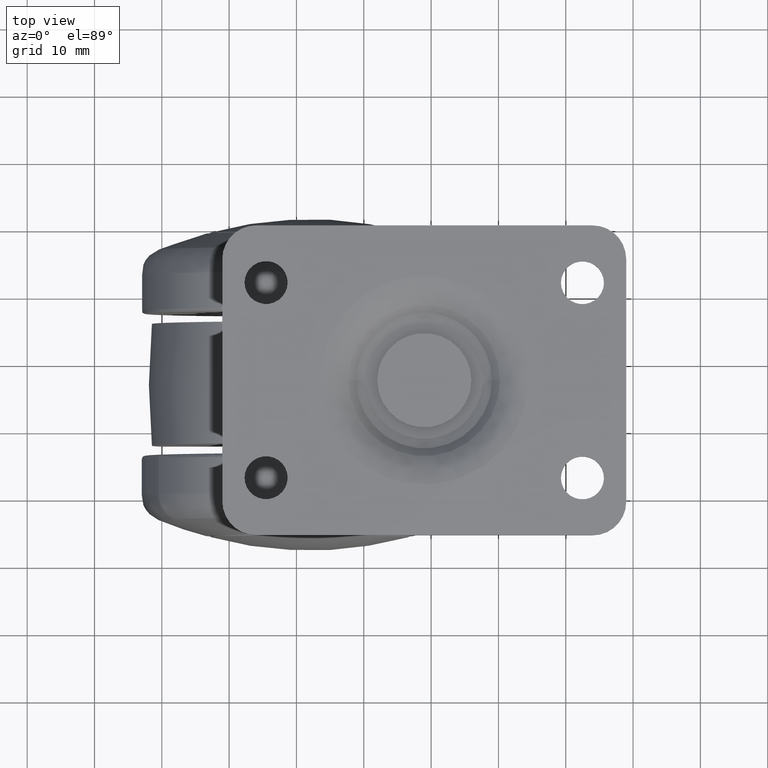
[diagram: clean part render]
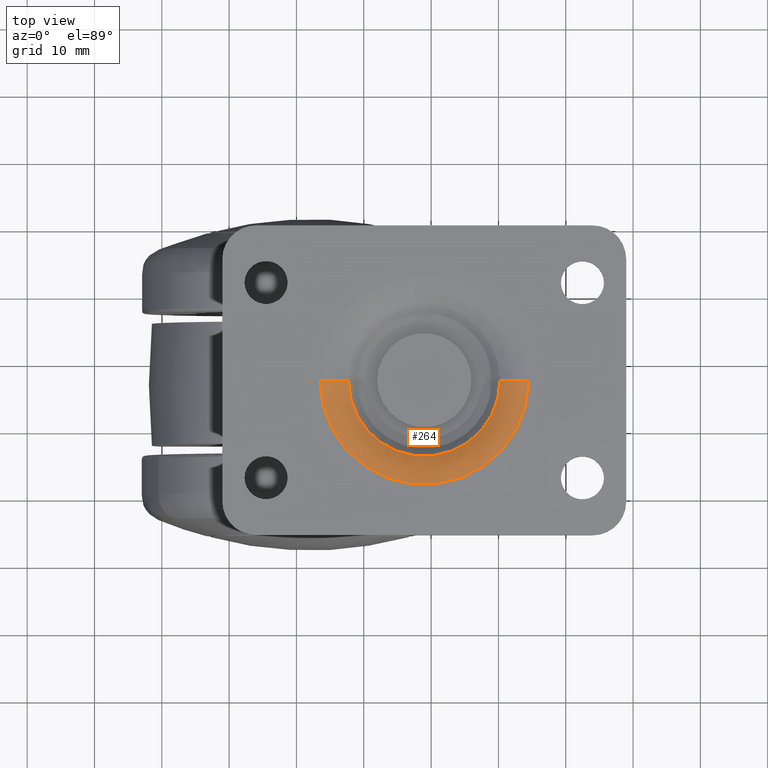
[diagram: same view with one face highlighted and labeled with its STEP entity id]
A machine part, top view. The second image highlights one B-rep face of the part: STEP entity #264.
In plain terms, the highlighted face is a freeform B-spline surface patch.
Its self-contained STEP definition (entity closure, byte-faithful):
#264=ADVANCED_FACE('',(#1379),#1378,.T.);
#1378=( BOUNDED_SURFACE() B_SPLINE_SURFACE( 2,2,((#6107,#6108,#6109),(#6110,#6111,#6112),(#6113,#6114,#6115),(#6116,#6117,#6118),(#6119,#6120,#6121)), .UNSPECIFIED.,.F.,.F.,.F.) B_SPLINE_SURFACE_WITH_KNOTS((3,2,3),(3,3),(0.00000000000E+00,5.00000000000E-01,1.00000000000E+00),(0.00000000000E+00,1.00000000000E+00), .UNSPECIFIED. ) GEOMETRIC_REPRESENTATION_ITEM() RATIONAL_B_SPLINE_SURFACE(((1.00000000000E+00,7.08114772209E-01,1.00000000000E+00),(7.07106781187E-01,5.00712757287E-01,7.07106781187E-01),(1.00000000000E+00,7.08114772209E-01,1.00000000000E+00),(7.07106781187E-01,5.00712757287E-01,7.07106781187E-01),(1.00000000000E+00,7.08114772209E-01,1.00000000000E+00))) REPRESENTATION_ITEM('') SURFACE() );
#1379=FACE_OUTER_BOUND('',#6122,.T.);
#6107=CARTESIAN_POINT('',(-1.37813340159E-15,1.75131136675E+00,-1.12536848865E+01));
#6108=CARTESIAN_POINT('',(-1.89694818321E-15,-2.47320270030E+00,-1.54902689937E+01));
#6109=CARTESIAN_POINT('',(-2.41576296484E-15,1.75131136675E+00,-1.97268531010E+01));
#6110=CARTESIAN_POINT('',(-1.12536848865E+01,1.75131136675E+00,-1.12536848865E+01));
#6111=CARTESIAN_POINT('',(-1.54902689937E+01,-2.47320270030E+00,-1.54902689937E+01));
#6112=CARTESIAN_POINT('',(-1.97268531010E+01,1.75131136675E+00,-1.97268531010E+01));
#6113=CARTESIAN_POINT('',(-1.12536848865E+01,1.75131136675E+00,6.36471008619E-14));
#6114=CARTESIAN_POINT('',(-1.54902689937E+01,-2.47320270030E+00,6.39064996853E-14));
#6115=CARTESIAN_POINT('',(-1.97268531010E+01,1.75131136675E+00,6.41658985086E-14));
#6116=CARTESIAN_POINT('',(-1.12536848865E+01,1.75131136675E+00,1.12536848865E+01));
#6117=CARTESIAN_POINT('',(-1.54902689937E+01,-2.47320270030E+00,1.54902689937E+01));
#6118=CARTESIAN_POINT('',(-1.97268531010E+01,1.75131136675E+00,1.97268531010E+01));
#6119=CARTESIAN_POINT('',(-4.55158942410E-20,1.75131136675E+00,1.12536848865E+01));
#6120=CARTESIAN_POINT('',(-6.26508963417E-20,-2.47320270030E+00,1.54902689937E+01));
#6121=CARTESIAN_POINT('',(-7.97858984426E-20,1.75131136675E+00,1.97268531010E+01));
#6122=EDGE_LOOP('',(#6949,#6950,#6951,#6952));
#6949=ORIENTED_EDGE('',*,*,#7299,.F.);
#6950=ORIENTED_EDGE('',*,*,#7334,.F.);
#6951=ORIENTED_EDGE('',*,*,#7335,.F.);
#6952=ORIENTED_EDGE('',*,*,#7336,.T.);
#7299=EDGE_CURVE('',#8904,#8903,#8911,.T.);
#7334=EDGE_CURVE('',#9145,#8904,#9146,.T.);
#7335=EDGE_CURVE('',#9152,#9145,#9153,.T.);
#7336=EDGE_CURVE('',#9152,#8903,#9159,.T.);
#8903=VERTEX_POINT('',#10695);
#8904=VERTEX_POINT('',#10696);
#8911=CIRCLE('',#10704,1.54902689937E+01);
#9145=VERTEX_POINT('',#10853);
#9146=(BOUNDED_CURVE() B_SPLINE_CURVE(2,(#10854,#10855,#10856),.UNSPECIFIED.,.F.,.F.) B_SPLINE_CURVE_WITH_KNOTS((3,3),(0.00000000000E+00,4.99999996689E-01),.UNSPECIFIED.) CURVE() GEOMETRIC_REPRESENTATION_ITEM() RATIONAL_B_SPLINE_CURVE((1.00000000000E+00,8.54057387071E-01,8.54057386104E-01)) REPRESENTATION_ITEM('') );
#9152=VERTEX_POINT('',#10857);
#9153=CIRCLE('',#10861,1.12536848865E+01);
#9159=(BOUNDED_CURVE() B_SPLINE_CURVE(2,(#10862,#10863,#10864),.UNSPECIFIED.,.F.,.F.) B_SPLINE_CURVE_WITH_KNOTS((3,3),(0.00000000000E+00,4.99999943732E-01),.UNSPECIFIED.) CURVE() GEOMETRIC_REPRESENTATION_ITEM() RATIONAL_B_SPLINE_CURVE((7.50000000000E-01,6.40543051896E-01,6.40543039578E-01)) REPRESENTATION_ITEM('') );
#10695=CARTESIAN_POINT('',(0.00000000000E+00,0.00000000000E+00,1.54902689937E+01));
#10696=CARTESIAN_POINT('',(1.77635683940E-15,0.00000000000E+00,-1.54902689937E+01));
#10701=CARTESIAN_POINT('',(0.00000000000E+00,0.00000000000E+00,6.29580569191E-14));
#10702=DIRECTION('',(0.00000000000E+00,1.00000000000E+00,-0.00000000000E+00));
#10703=DIRECTION('',(-1.22460635382E-16,0.00000000000E+00,1.00000000000E+00));
#10704=AXIS2_PLACEMENT_3D('',#10701,#10702,#10703);
#10853=CARTESIAN_POINT('',(0.00000000000E+00,1.75131136675E+00,-1.12536848865E+01));
#10854=CARTESIAN_POINT('',(-1.37813340159E-15,1.75131136675E+00,-1.12536848865E+01));
#10855=CARTESIAN_POINT('',(-1.59321286466E-15,1.35804417820E-08,-1.30099999864E+01));
#10856=CARTESIAN_POINT('',(-1.89694817919E-15,-4.30036127192E-16,-1.54902689609E+01));
#10857=CARTESIAN_POINT('',(1.37813340159E-15,1.75131136675E+00,1.12536848865E+01));
#10858=CARTESIAN_POINT('',(0.00000000000E+00,1.75131136675E+00,6.11467095550E-15));
#10859=DIRECTION('',(0.00000000000E+00,-1.00000000000E+00,0.00000000000E+00));
#10860=DIRECTION('',(-0.00000000000E+00,-0.00000000000E+00,1.00000000000E+00));
#10861=AXIS2_PLACEMENT_3D('',#10858,#10859,#10860);
#10862=CARTESIAN_POINT('',(1.18423789293E-15,1.75131136675E+00,1.12536848865E+01));
#10863=CARTESIAN_POINT('',(1.38660222302E-15,2.30764501416E-07,1.30099997686E+01));
#10864=CARTESIAN_POINT('',(1.73325273409E-15,2.54494117938E-14,1.54902684355E+01));